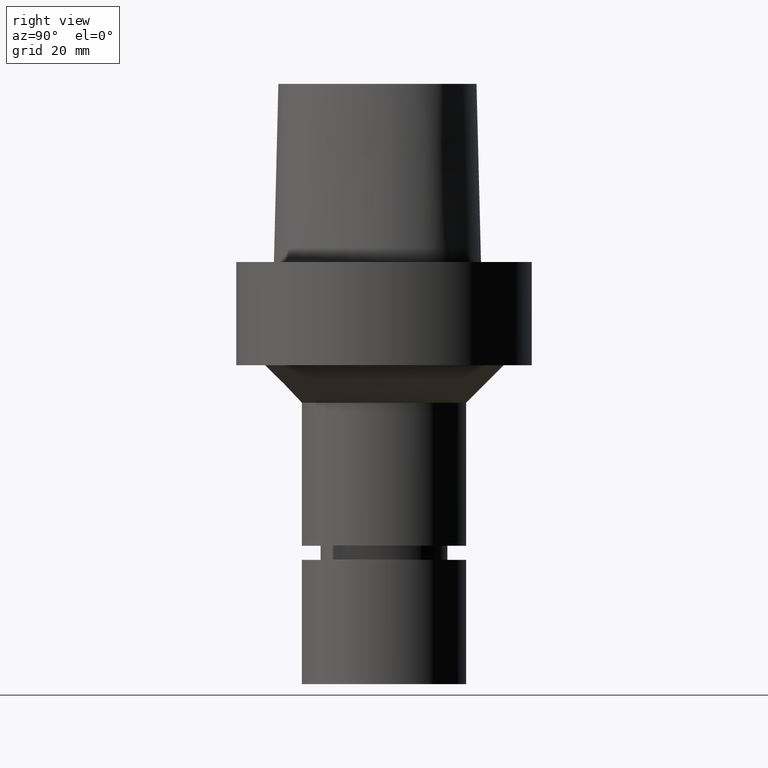
[diagram: clean part render]
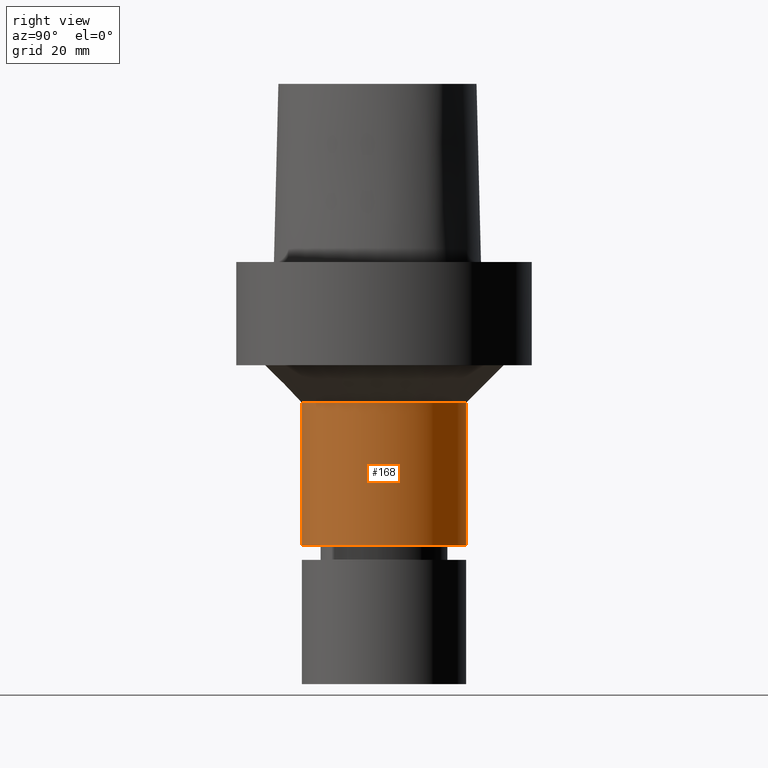
[diagram: same view with one face highlighted and labeled with its STEP entity id]
A machine part, right view. The second image highlights one B-rep face of the part: STEP entity #168.
In plain terms, the highlighted cylindrical surface (bore or boss wall) has radius 17.5 mm, axis along (0, 0, -1).
Its self-contained STEP definition (entity closure, byte-faithful):
#93=EDGE_CURVE('Unnamed[1]',#223,#223,#224,.T.);
#111=EDGE_CURVE('Unnamed[1]',#253,#253,#254,.T.);
#168=ADVANCED_FACE('Unnamed[1]',(#330,#331),#332,.T.);
#223=VERTEX_POINT('',#389);
#224=CIRCLE('',#390,17.4999999999996);
#253=VERTEX_POINT('',#529);
#254=CIRCLE('',#530,17.4999999999998);
#330=FACE_BOUND('',#728,.T.);
#331=FACE_BOUND('',#729,.T.);
#332=CYLINDRICAL_SURFACE('',#730,17.4999999999997);
#389=CARTESIAN_POINT('',(3.70455656742073E-015,17.4999999999997,-60.4999999999998));
#390=AXIS2_PLACEMENT_3D('',#772,#773,#774);
#529=CARTESIAN_POINT('',(1.83697019872103E-015,17.4999999999998,-30.0000000000001));
#530=AXIS2_PLACEMENT_3D('',#798,#799,#800);
#728=EDGE_LOOP('',(#877));
#729=EDGE_LOOP('',(#878));
#730=AXIS2_PLACEMENT_3D('',#879,#880,#881);
#772=CARTESIAN_POINT('',(3.70455656742073E-015,7.40911313484146E-015,-60.4999999999998));
#773=DIRECTION('',(6.12323399573677E-017,1.22464679914735E-016,-1.0));
#774=DIRECTION('',(-1.23259516440783E-032,1.0,1.22464679914735E-016));
#798=CARTESIAN_POINT('',(1.83697019872103E-015,3.67394039744207E-015,-30.0000000000001));
#799=DIRECTION('',(6.12323399573677E-017,1.22464679914735E-016,-1.0));
#800=DIRECTION('',(-1.23259516440783E-032,1.0,1.22464679914735E-016));
#877=ORIENTED_EDGE('',*,*,#93,.F.);
#878=ORIENTED_EDGE('',*,*,#111,.T.);
#879=CARTESIAN_POINT('',(2.77076338307088E-015,5.54152676614176E-015,-45.2499999999999));
#880=DIRECTION('',(6.12323399573676E-017,1.22464679914735E-016,-1.0));
#881=DIRECTION('',(-1.23259516440783E-032,1.0,1.22464679914735E-016));